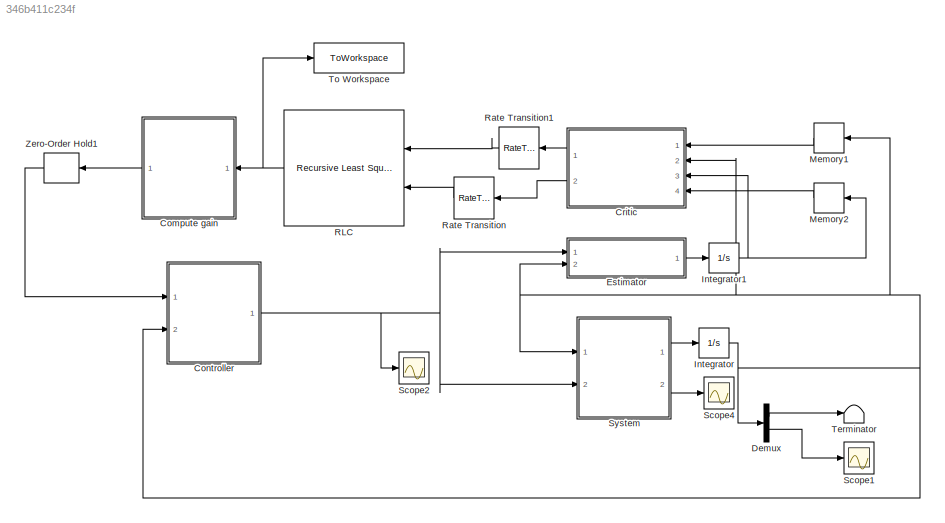
MODEL slx_346b411c234f
KIND model
CONFIG AbsTol = auto
CONFIG EnableMultiTasking = off
CONFIG FixedStep = 0.1
CONFIG MaxStep = auto
CONFIG MinStep = auto
CONFIG RelTol = 1e-3
CONFIG SampleTimeConstraint = Unconstrained
CONFIG Solver = VariableStepAuto
CONFIG SolverName = VariableStepAuto
CONFIG StartTime = 0.0
CONFIG StopTime = 10
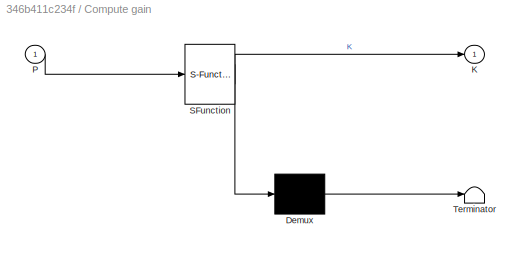
BLOCK [SubSystem] Compute gain
  ErrorFcn = Stateflow.Translate.translate
  PermitHierarchicalResolution = ExplicitOnly
  Ports = [1, 1]
  RequestExecContextInheritance = off
  SFBlockType = MATLAB Function
  TreatAsAtomicUnit = on
BLOCK [Demux] Compute gain/ Demux 
  Outputs = 1
  Ports = [1, 1]
BLOCK [S-Function] Compute gain/ SFunction 
  EnableBusSupport = on
  FunctionName = sf_sfun
  PortCounts = [1 2]
  Ports = [1, 2]
  SFcnIsStateOwnerBlock = off
  SFunctionDeploymentMode = off
  Tag = Stateflow S-Function 5
BLOCK [Terminator] Compute gain/ Terminator 
BLOCK [Outport] Compute gain/K
  IconDisplay = Port number
  VectorParamsAs1DForOutWhenUnconnected = off
BLOCK [Inport] Compute gain/P
  IconDisplay = Port number
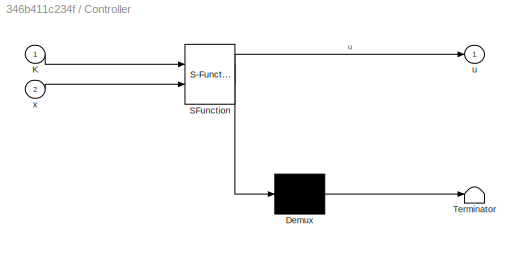
BLOCK [SubSystem] Controller 
  ErrorFcn = Stateflow.Translate.translate
  PermitHierarchicalResolution = ExplicitOnly
  Ports = [2, 1]
  RequestExecContextInheritance = off
  SFBlockType = MATLAB Function
  TreatAsAtomicUnit = on
BLOCK [Demux] Controller / Demux 
  Outputs = 1
  Ports = [1, 1]
BLOCK [S-Function] Controller / SFunction 
  EnableBusSupport = on
  FunctionName = sf_sfun
  PortCounts = [2 2]
  Ports = [2, 2]
  SFcnIsStateOwnerBlock = off
  SFunctionDeploymentMode = off
  Tag = Stateflow S-Function 4
BLOCK [Terminator] Controller / Terminator 
BLOCK [Inport] Controller /K
  IconDisplay = Port number
BLOCK [Outport] Controller /u
  IconDisplay = Port number
  VectorParamsAs1DForOutWhenUnconnected = off
BLOCK [Inport] Controller /x
  IconDisplay = Port number
  Port = 2
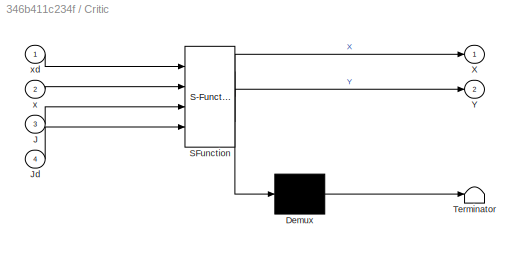
BLOCK [SubSystem] Critic 
  ErrorFcn = Stateflow.Translate.translate
  PermitHierarchicalResolution = ExplicitOnly
  Ports = [4, 2]
  RequestExecContextInheritance = off
  SFBlockType = MATLAB Function
  TreatAsAtomicUnit = on
BLOCK [Demux] Critic / Demux 
  Outputs = 1
  Ports = [1, 1]
BLOCK [S-Function] Critic / SFunction 
  EnableBusSupport = on
  FunctionName = sf_sfun
  PortCounts = [4 3]
  Ports = [4, 3]
  SFcnIsStateOwnerBlock = off
  SFunctionDeploymentMode = off
  Tag = Stateflow S-Function 3
BLOCK [Terminator] Critic / Terminator 
BLOCK [Inport] Critic /J
  IconDisplay = Port number
  Port = 3
BLOCK [Inport] Critic /Jd
  IconDisplay = Port number
  Port = 4
BLOCK [Outport] Critic /X
  IconDisplay = Port number
BLOCK [Outport] Critic /Y
  IconDisplay = Port number
  Port = 2
  VectorParamsAs1DForOutWhenUnconnected = off
BLOCK [Inport] Critic /x
  IconDisplay = Port number
  Port = 2
BLOCK [Inport] Critic /xd
  IconDisplay = Port number
BLOCK [Demux] Demux
  DisplayOption = bar
  Outputs = 2
  Ports = [1, 2]
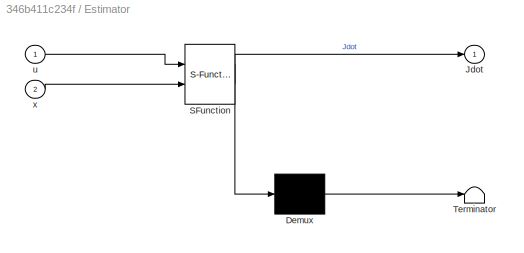
BLOCK [SubSystem] Estimator 
  ErrorFcn = Stateflow.Translate.translate
  PermitHierarchicalResolution = ExplicitOnly
  Ports = [2, 1]
  RequestExecContextInheritance = off
  SFBlockType = MATLAB Function
  TreatAsAtomicUnit = on
BLOCK [Demux] Estimator / Demux 
  Outputs = 1
  Ports = [1, 1]
BLOCK [S-Function] Estimator / SFunction 
  EnableBusSupport = on
  FunctionName = sf_sfun
  PortCounts = [2 2]
  Ports = [2, 2]
  SFcnIsStateOwnerBlock = off
  SFunctionDeploymentMode = off
  Tag = Stateflow S-Function 1
BLOCK [Terminator] Estimator / Terminator 
BLOCK [Outport] Estimator /Jdot
  IconDisplay = Port number
  VectorParamsAs1DForOutWhenUnconnected = off
BLOCK [Inport] Estimator /u
  IconDisplay = Port number
BLOCK [Inport] Estimator /x
  IconDisplay = Port number
  Port = 2
BLOCK [Integrator] Integrator
  InitialCondition = [5;0]
  Ports = [1, 1]
BLOCK [Integrator] Integrator1
  InitialCondition = 1
  Ports = [1, 1]
BLOCK [Memory] Memory1
  InitialCondition = [3;0]
BLOCK [Memory] Memory2
  InitialCondition = 20
BLOCK [Reference] RLC  REF=ctrlSharedLib/Recursive Least Squares Estimator
  Ports = [2, 1]
  SourceBlock = ctrlSharedLib/Recursive Least Squares Estimator
  SourceProductBaseCode = CT
  SourceProductName = Control System Toolbox
  SourceType = idEstimatorsRLS
BLOCK [RateTransition] Rate Transition
  OutPortSampleTime = 0.01
BLOCK [RateTransition] Rate Transition1
  OutPortSampleTime = 0.01
BLOCK [Scope] Scope1
  Floating = off
  NumInputPorts = 1
  Ports = [1]
  ScopeSpecificationString = Simulink.scopes.TimeScopeBlockCfg('CurrentConfiguration', extmgr.ConfigurationSet(extmgr.Configuration('Core','General UI',true),extmgr.Configuration('Core','Source UI',true),extmgr.Configuration('Sources','WiredSimulink',true,'DataLoggingVariableName','ScopeData1'),extmgr.Configuration('Visuals','Time Domain',true,'SerializedDisplays',{struct('MinYLimReal','-4.82147','MaxYLimReal','0.89187','YLab...<+1366ch>
BLOCK [Scope] Scope2
  Floating = off
  NumInputPorts = 1
  Ports = [1]
  ScopeSpecificationString = Simulink.scopes.TimeScopeBlockCfg('CurrentConfiguration', extmgr.ConfigurationSet(extmgr.Configuration('Core','General UI',true),extmgr.Configuration('Core','Source UI',true),extmgr.Configuration('Sources','WiredSimulink',true),extmgr.Configuration('Visuals','Time Domain',true,'SerializedDisplays',{struct('MinYLimReal','-15.72759','MaxYLimReal','134.99597','YLabelReal','','MinYLimMag','0.00000','M...<+1389ch>
BLOCK [Scope] Scope4
  Floating = off
  NumInputPorts = 1
  Ports = [1]
  ScopeSpecificationString = Simulink.scopes.TimeScopeBlockCfg('CurrentConfiguration', extmgr.ConfigurationSet(extmgr.Configuration('Core','General UI',true),extmgr.Configuration('Core','Source UI',true),extmgr.Configuration('Sources','WiredSimulink',true,'DataLoggingVariableName','ScopeData2'),extmgr.Configuration('Visuals','Time Domain',true,'SerializedDisplays',{struct('MinYLimReal','-1.05179','MaxYLimReal','5.67242','YLab...<+1367ch>
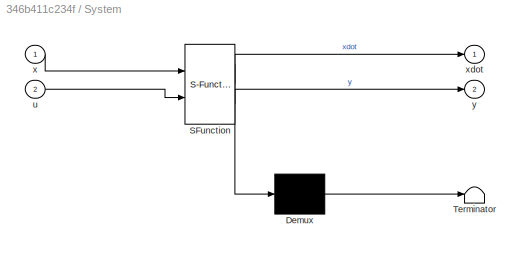
BLOCK [SubSystem] System
  ErrorFcn = Stateflow.Translate.translate
  PermitHierarchicalResolution = ExplicitOnly
  Ports = [2, 2]
  RequestExecContextInheritance = off
  SFBlockType = MATLAB Function
  TreatAsAtomicUnit = on
BLOCK [Demux] System/ Demux 
  Outputs = 1
  Ports = [1, 1]
BLOCK [S-Function] System/ SFunction 
  EnableBusSupport = on
  FunctionName = sf_sfun
  PortCounts = [2 3]
  Ports = [2, 3]
  SFcnIsStateOwnerBlock = off
  SFunctionDeploymentMode = off
  Tag = Stateflow S-Function 2
BLOCK [Terminator] System/ Terminator 
BLOCK [Inport] System/u
  IconDisplay = Port number
  Port = 2
BLOCK [Inport] System/x
  IconDisplay = Port number
BLOCK [Outport] System/xdot
  IconDisplay = Port number
  VectorParamsAs1DForOutWhenUnconnected = off
BLOCK [Outport] System/y
  IconDisplay = Port number
  Port = 2
BLOCK [Terminator] Terminator
BLOCK [ToWorkspace] To Workspace
  FixptAsFi = on
  MaxDataPoints = inf
  Ports = [1]
  SampleTime = -1
  VariableName = P_arr
BLOCK [ZeroOrderHold] Zero-Order Hold1
  SampleTime = -1
LINE Compute gain:1 -> Zero-Order Hold1:1
NET Controller :1 -> Estimator :1, Scope2:1, System:2
LINE Critic :1 -> Rate Transition1:1
LINE Critic :2 -> Rate Transition:1
LINE Demux:1 -> Terminator:1
LINE Demux:2 -> Scope1:1
LINE Estimator :1 -> Integrator1:1
NET Integrator1:1 -> Critic :3, Memory2:1
NET Integrator:1 -> Controller :2, Critic :2, Demux:1, Estimator :2, Memory1:1, System:1
LINE Memory1:1 -> Critic :1
LINE Memory2:1 -> Critic :4
NET RLC:1 -> Compute gain:1, To Workspace:1
LINE Rate Transition1:1 -> RLC:1
LINE Rate Transition:1 -> RLC:2
LINE System:1 -> Integrator:1
LINE System:2 -> Scope4:1
LINE Zero-Order Hold1:1 -> Controller :1
note: NET lines group one-source signal fan-out (src -> all destinations, sorted); 1:1 wires keep LINE
CHART Estimator
 states=1 transitions=1
  STATE_LABEL 'eML_blk_kernel()'
  STATE_LABEL "SCRIPT:\nfunction Jdot = fcn(u,x)\n%Cost function evaluation\n\n\nQ = [1 0;0 1];\nR = 1;\nalp = 0.1;\n\n\n\nJdot = x'*Q*x + u'*R*u;\n"
CHART System states=1 transitions=1
  STATE_LABEL 'eML_blk_kernel()'
  STATE_LABEL 'SCRIPT:\nfunction [xdot,y] = fcn(x,u)\n\nB = [0;1];\nA = [0 1;-3 -2];\nC = [1 0];\n\n\nxdot = A*x + B*u;\ny = C*x;\n'
CHART Critic
 states=1 transitions=1
  STATE_LABEL 'eML_blk_kernel()'
  STATE_LABEL 'SCRIPT:\nfunction [X,Y] = fcn(xd,x,J,Jd)\n\nxd1 = x(1)^2;\nxd2 = x(1)*x(2);\nxd3 = x(2)*x(1);\nxd4 = x(2)^2;\n\nxn1 = xd(1)^2;\nxn2 = xd(1)*xd(2);\nxn3 = xd(2)*xd(1);\nxn4 = xd(2)^2;\n\nx1 = [xd1;xd2;xd3;xd4];\nx2 = [xn1;xn2;xn3;xn4];\n\nX = (x2 - x1);\nY = (J-Jd);\n\n\n'
CHART Controller
 states=1 transitions=1
  STATE_LABEL 'eML_blk_kernel()'
  STATE_LABEL 'SCRIPT:\nfunction u = fcn(K, x)\nu = 0;\n\n%ddot =\nalp = 0.1;\ne = [alp^2 alp^2];\n\nu = -K*x;'
CHART Compute gain states=1 transitions=1
  STATE_LABEL 'eML_blk_kernel()'
  STATE_LABEL "SCRIPT:\nfunction K = fcn(P)\nK = [0 0];\nPi = [0 0;0 0];\n\nB = [0;1];\n\np1 = P(1);\np12 = P(2)/2;\np21 = P(3)/2;\np2 = P(4);\n\n\nPi = [p1, p12;p21, p2];\n\nK = B'*Pi;\n"
